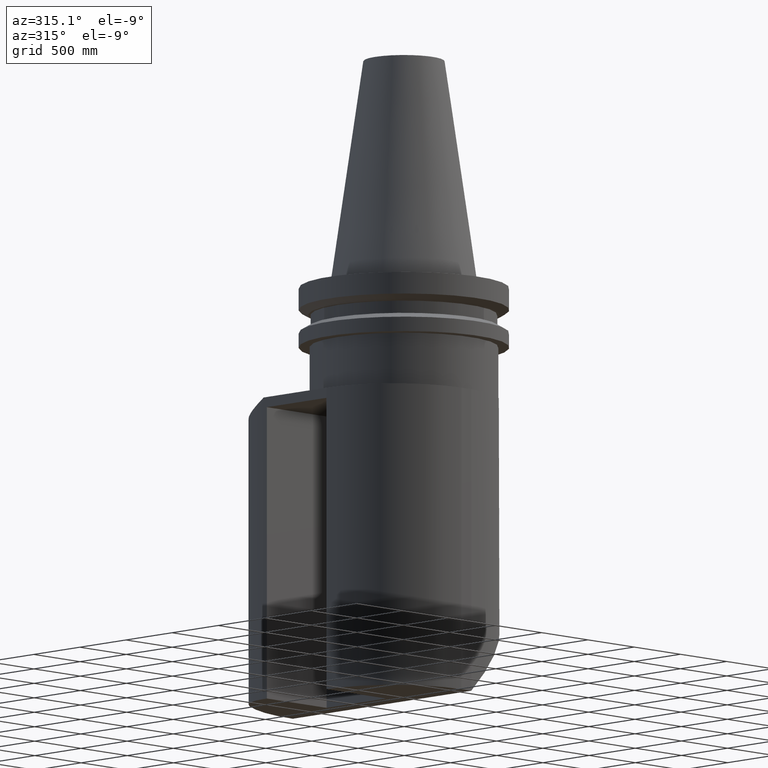
[diagram: clean part render]
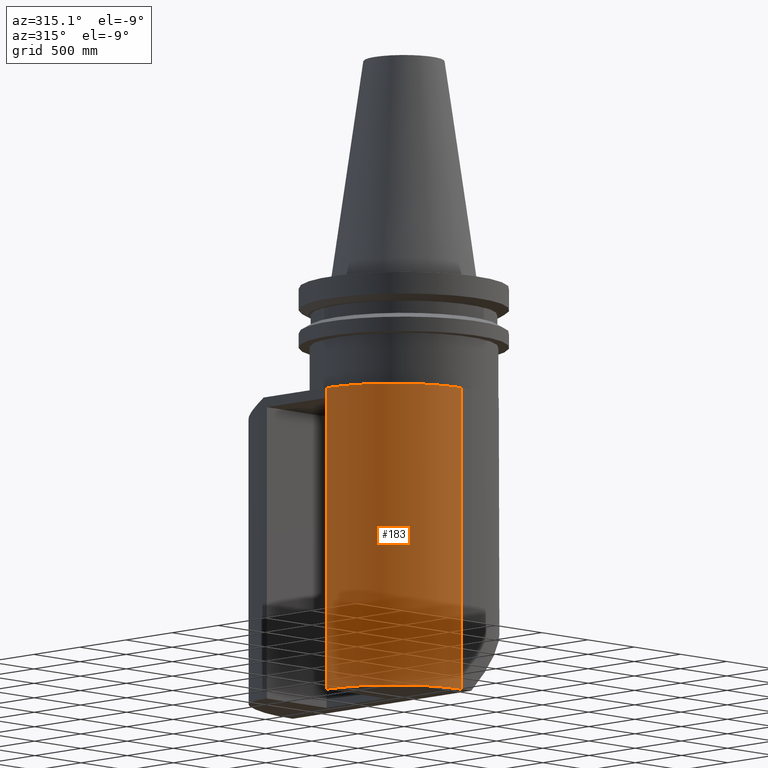
[diagram: same view with one face highlighted and labeled with its STEP entity id]
A machine part, auxiliary view. The second image highlights one B-rep face of the part: STEP entity #183.
In plain terms, the highlighted cylindrical surface (partial cylindrical patch) has radius 730.25 mm, axis along (-0, 0, 1).
Its self-contained STEP definition (entity closure, byte-faithful):
#144=EDGE_CURVE('Unnamed[1]',#361,#380,#381,.T.);
#166=EDGE_CURVE('Unnamed[1]',#361,#410,#411,.T.);
#183=ADVANCED_FACE('Unnamed[1]',(#434),#435,.T.);
#200=EDGE_CURVE('Unnamed[1]',#460,#380,#461,.T.);
#259=EDGE_CURVE('Unnamed[1]',#410,#454,#542,.T.);
#263=EDGE_CURVE('Unnamed[1]',#454,#460,#546,.T.);
#361=VERTEX_POINT('',#678);
#380=VERTEX_POINT('',#722);
#381=LINE('',#723,#724);
#410=VERTEX_POINT('',#764);
#411=CIRCLE('',#765,28.75);
#434=FACE_OUTER_BOUND('',#795,.T.);
#435=CYLINDRICAL_SURFACE('',#796,28.75);
#454=VERTEX_POINT('',#823);
#460=VERTEX_POINT('',#832);
#461=CIRCLE('',#833,28.75);
#542=LINE('',#949,#950);
#546=LINE('',#957,#958);
#678=CARTESIAN_POINT('',(-4.25000000000013,-28.75,-126.999999999999));
#722=CARTESIAN_POINT('',(-4.25000000000014,-28.7499999999999,-34.9999999999997));
#723=CARTESIAN_POINT('',(-4.25000000000011,-28.75,-251.999999999994));
#724=VECTOR('',#1088,1.0);
#764=CARTESIAN_POINT('',(-33.0,-1.21524234491607E-011,-126.999999999999));
#765=AXIS2_PLACEMENT_3D('',#1132,#1133,#1134);
#795=EDGE_LOOP('',(#1175,#1176,#1177,#1178,#1179));
#796=AXIS2_PLACEMENT_3D('',#1180,#1181,#1182);
#823=CARTESIAN_POINT('',(-32.9999999999885,3.21507589338056E-014,-38.0999999999998));
#832=CARTESIAN_POINT('',(-33.0,-1.21467900738847E-011,-34.9999999999998));
#833=AXIS2_PLACEMENT_3D('',#1201,#1202,#1203);
#949=CARTESIAN_POINT('',(-33.0,-1.21600774916554E-011,-251.999999999994));
#950=VECTOR('',#1300,1.0);
#957=CARTESIAN_POINT('',(-33.0,-1.21600774916554E-011,-251.999999999994));
#958=VECTOR('',#1302,1.0);
#1088=DIRECTION('',(-1.22464679914735E-016,6.12323399573677E-017,1.0));
#1132=CARTESIAN_POINT('',(-4.24999999999999,4.98476240206789E-014,-126.999999999998));
#1133=DIRECTION('',(1.0294444897112E-014,-6.12323399573696E-017,-1.0));
#1134=DIRECTION('',(3.06161699786838E-016,1.0,-6.12323399573664E-017));
#1175=ORIENTED_EDGE('',*,*,#166,.F.);
#1176=ORIENTED_EDGE('',*,*,#144,.T.);
#1177=ORIENTED_EDGE('',*,*,#200,.F.);
#1178=ORIENTED_EDGE('',*,*,#263,.F.);
#1179=ORIENTED_EDGE('',*,*,#259,.F.);
#1180=CARTESIAN_POINT('',(-4.24999999999998,4.21935815260082E-014,-251.999999999994));
#1181=DIRECTION('',(-1.22464679914735E-016,6.12323399573677E-017,1.0));
#1182=DIRECTION('',(3.06161699786838E-016,1.0,-6.12323399573677E-017));
#1201=CARTESIAN_POINT('',(-4.25000000000001,5.54809992967566E-014,-34.9999999999997));
#1202=DIRECTION('',(-1.22464679914735E-016,6.12323399573677E-017,1.0));
#1203=DIRECTION('',(3.06161699786838E-016,1.0,-6.12323399573677E-017));
#1300=DIRECTION('',(-1.22464679914735E-016,6.12323399573677E-017,1.0));
#1302=DIRECTION('',(-1.22464679914735E-016,6.12323399573677E-017,1.0));